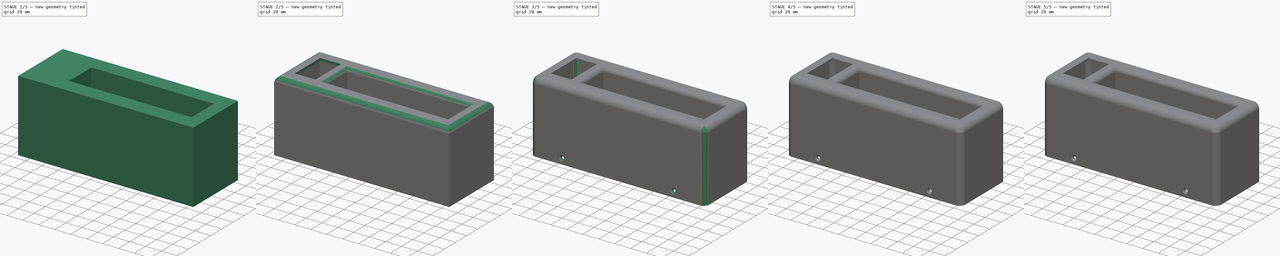
[diagram: build sequence overview — one tinted view per stage of 5, left to right]
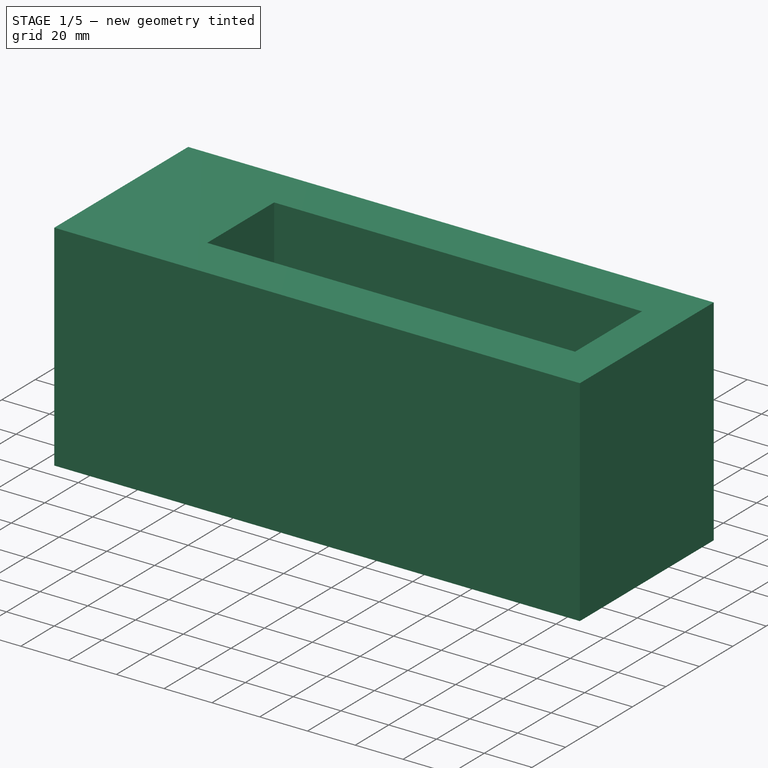
[diagram: stage 1 of 5 — iso view after this stage's code; geometry added in this stage tinted green]
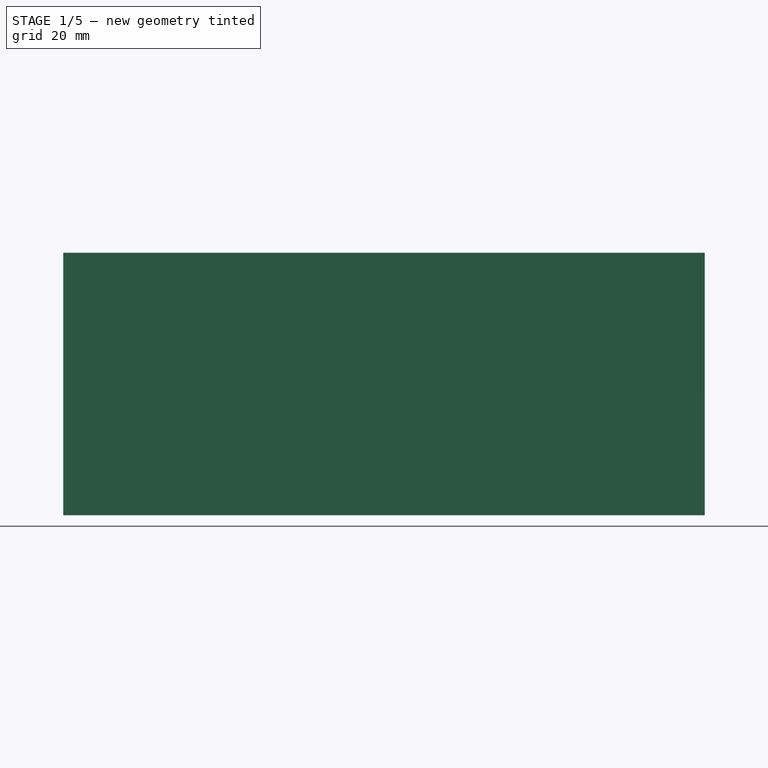
[diagram: stage 1 of 5 — front view after this stage's code; geometry added in this stage tinted green]
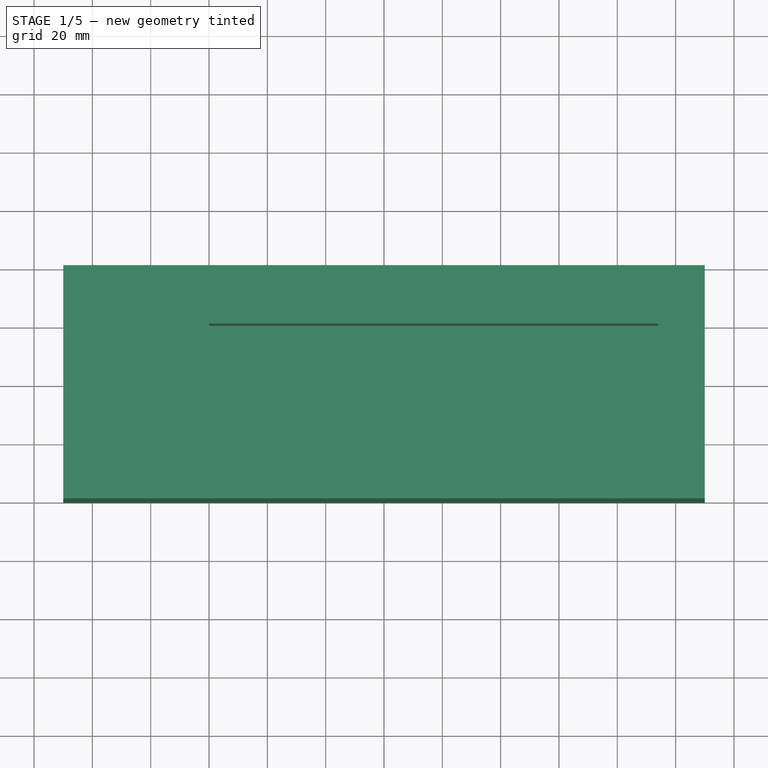
[diagram: stage 1 of 5 — top view after this stage's code; geometry added in this stage tinted green]
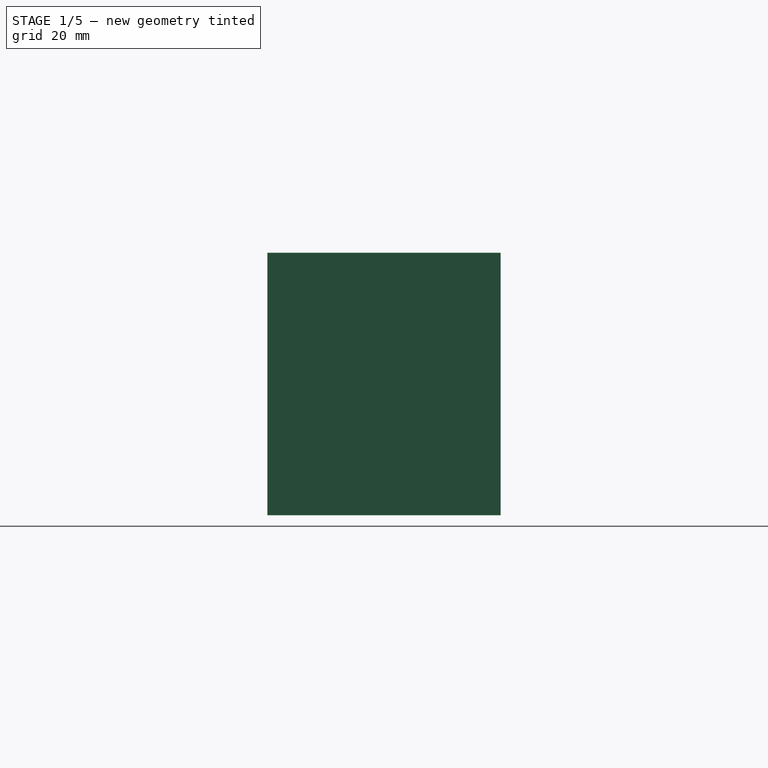
[diagram: stage 1 of 5 — right view after this stage's code; geometry added in this stage tinted green]
FCSTD DOCUMENT  (FreeCAD 1.0R39319 (Git))
Label: top
License: All rights reserved
LicenseURL: https://en.wikipedia.org/wiki/All_rights_reserved
objects: Sketcher::SketchObject×16, PartDesign::Pocket×13, PartDesign::Fillet×8, PartDesign::Pad×3, PartDesign::Chamfer×2, PartDesign::Body×1
note: 111 computed .brp shape members not serialized (recipe doc carries the construction recipe); baked Part::Feature solids carry a one-line shape summary decoded from their .brp

FEATURE [Sketcher::SketchObject] Sketch
  ArcFitTolerance = 1e-06
  AttachmentSupport = -> [XY_Plane]
  FullyConstrained = true
  MakeInternals = false
  MapMode = 5
  sketch-geometry (4):
    g0: LineSegment StartX=-110 StartY=40 StartZ=0 EndX=-110 EndY=-40 EndZ=0
    g1: LineSegment StartX=-110 StartY=-40 StartZ=0 EndX=110 EndY=-40 EndZ=0
    g2: LineSegment StartX=110 StartY=-40 StartZ=0 EndX=110 EndY=40 EndZ=0
    g3: LineSegment StartX=110 StartY=40 StartZ=0 EndX=-110 EndY=40 EndZ=0
  constraints (12):
    c: Coincident(g0,g1)
    c: Coincident(g1,g2)
    c: Coincident(g2,g3)
    c: Coincident(g3,g0)
    c: Vertical(g0)
    c: Vertical(g2)
    c: Horizontal(g1)
    c: Horizontal(g3)
    c: DistanceX(g3,g3) = 220
    c: DistanceY(g2,g2) = 80
    c: DistanceY(g-1,g0) = 40
    c: DistanceX(g0,g-1) = 110
FEATURE [PartDesign::Pad] Pad
  Direction = (0,0,1)
  Length = 90
  Length2 = 10
  Profile = -> Sketch
  ReferenceAxis = -> Sketch [N_Axis]
  Refine = true
  Suppressed = false
  Type = 0
FEATURE [Sketcher::SketchObject] Sketch001
  ArcFitTolerance = 1e-06
  AttachmentSupport = -> [Pad]
  FullyConstrained = true
  MakeInternals = false
  MapMode = 5
  Placement = pos=(0,0,90) rot=(0,0,1;0rad)
  sketch-geometry (4):
    g0: LineSegment StartX=-60 StartY=20 StartZ=0 EndX=-60 EndY=-20 EndZ=0
    g1: LineSegment StartX=-60 StartY=-20 StartZ=0 EndX=94 EndY=-20 EndZ=0
    g2: LineSegment StartX=94 StartY=-20 StartZ=0 EndX=94 EndY=20 EndZ=0
    g3: LineSegment StartX=94 StartY=20 StartZ=0 EndX=-60 EndY=20 EndZ=0
  constraints (12):
    c: Coincident(g0,g1)
    c: Coincident(g1,g2)
    c: Coincident(g2,g3)
    c: Coincident(g3,g0)
    c: Vertical(g0)
    c: Vertical(g2)
    c: Horizontal(g1)
    c: Horizontal(g3)
    c: DistanceX(g3,g3) = 154
    c: DistanceY(g2,g2) = 40
    c: DistanceX(g0,g-1) = 60
    c: DistanceY(g-1,g0) = 20
FEATURE [PartDesign::Pocket] Pocket
  BaseFeature = -> Pad
  Direction = (0,0,-1)
  Length = 50
  Length2 = 5
  Profile = -> Sketch001
  ReferenceAxis = -> Sketch001 [N_Axis]
  Refine = true
  Suppressed = false
  Type = 0
FEATURE [Sketcher::SketchObject] Sketch002  label="meter_cut_out"
  ArcFitTolerance = 1e-06
  AttachmentSupport = -> [Pocket]
  FullyConstrained = true
  MakeInternals = false
  MapMode = 5
  Placement = pos=(0,0,90) rot=(0,0,1;0rad)
  sketch-geometry (4):
    g0: LineSegment StartX=-96 StartY=23 StartZ=0 EndX=-96 EndY=-23 EndZ=0
    g1: LineSegment StartX=-96 StartY=-23 StartZ=0 EndX=-70 EndY=-23 EndZ=0
    g2: LineSegment StartX=-70 StartY=-23 StartZ=0 EndX=-70 EndY=23 EndZ=0
    g3: LineSegment StartX=-70 StartY=23 StartZ=0 EndX=-96 EndY=23 EndZ=0
  constraints (12):
    c: Coincident(g0,g1)
    c: Coincident(g1,g2)
    c: Coincident(g2,g3)
    c: Coincident(g3,g0)
    c: Vertical(g0)
    c: Vertical(g2)
    c: Horizontal(g1)
    c: Horizontal(g3)
    c: DistanceX(g3,g3) = 26
    c: DistanceY(g2,g2) = 46
    c: DistanceY(g-1,g2) = 23
    c: DistanceX(g2,g-1) = 70
FEATURE [Sketcher::SketchObject] Sketch003  label="xlr_part1"
  ArcFitTolerance = 1e-06
  AttachmentSupport = -> [Pocket]
  FullyConstrained = true
  MakeInternals = false
  MapMode = 5
  Placement = pos=(-110,0,0) rot=(0.57735,-0.57735,-0.57735;2.0944rad)
  sketch-geometry (3):
    g0: Circle CenterX=0 CenterY=17 CenterZ=0 NormalX=0 NormalY=0 NormalZ=1 AngleXU=0 Radius=11.75
    g1: Circle CenterX=9.5 CenterY=5 CenterZ=0 NormalX=0 NormalY=0 NormalZ=1 AngleXU=0 Radius=2.1
    g2: Circle CenterX=-9.5 CenterY=29 CenterZ=0 NormalX=0 NormalY=0 NormalZ=1 AngleXU=0 Radius=2.1
  constraints (9):
    c: PointOnObject(g0,g-2)
    c: Diameter(g0) = 23.5
    c: DistanceY(g-1,g0) = 17
    c: Equal(g2,g1)
    c: Diameter(g2) = 4.2
    c: DistanceY(g1,g0) = 12
    c: DistanceY(g0,g2) = 12
    c: DistanceX(g0,g1) = 9.5
    c: DistanceX(g2,g0) = 9.5
FEATURE [Sketcher::SketchObject] Sketch004
  ArcFitTolerance = 1e-06
  AttachmentSupport = -> [Pocket]
  FullyConstrained = false
  MakeInternals = false
  MapMode = 5
  Placement = pos=(-110,0,0) rot=(0.57735,-0.57735,-0.57735;2.0944rad)
  sketch-geometry (4):
    g0: LineSegment StartX=-5 StartY=29.6331 StartZ=0 EndX=-5 EndY=27.6331 EndZ=0
    g1: LineSegment StartX=-5 StartY=27.6331 StartZ=0 EndX=5 EndY=27.6331 EndZ=0
    g2: LineSegment StartX=5 StartY=27.6331 StartZ=0 EndX=5 EndY=29.6331 EndZ=0
    g3: LineSegment StartX=5 StartY=29.6331 StartZ=0 EndX=-5 EndY=29.6331 EndZ=0
  constraints (11):
    c: Coincident(g0,g1)
    c: Coincident(g1,g2)
    c: Coincident(g2,g3)
    c: Coincident(g3,g0)
    c: Vertical(g0)
    c: Vertical(g2)
    c: Horizontal(g1)
    c: Horizontal(g3)
    c: DistanceY(g2,g2) = 2
    c: DistanceX(g3,g3) = 10
    c: DistanceX(g0,g-1) = 5
FEATURE [PartDesign::Pocket] Pocket001
  BaseFeature = -> Pocket
  Direction = (1,0,0)
  Length = 5
  Length2 = 5
  Profile = -> Sketch004
  ReferenceAxis = -> Sketch004 [N_Axis]
  Refine = true
  Suppressed = false
  Type = 0
FEATURE [PartDesign::Pocket] Pocket002
  BaseFeature = -> Pocket001
  Direction = (1,0,0)
  Length = 5
  Length2 = 5
  Profile = -> Sketch003
  ReferenceAxis = -> Sketch003 [N_Axis]
  Refine = true
  Suppressed = false
  Type = 0
FEATURE [Sketcher::SketchObject] Sketch005  label="hollow_out"
  ArcFitTolerance = 1e-06
  AttachmentSupport = -> [Pocket002]
  ExternalGeometry = -> [Pocket002]
  FullyConstrained = true
  MakeInternals = false
  MapMode = 5
  Placement = pos=(0,0,0) rot=(1,0,0;3.14159rad)
  sketch-geometry (8):
    g0: LineSegment StartX=-107.5 StartY=37.5 StartZ=0 EndX=-107.5 EndY=-37.5 EndZ=0
    g1: LineSegment StartX=-107.5 StartY=-37.5 StartZ=0 EndX=107.5 EndY=-37.5 EndZ=0
    g2: LineSegment StartX=107.5 StartY=-37.5 StartZ=0 EndX=107.5 EndY=37.5 EndZ=0
    g3: LineSegment StartX=107.5 StartY=37.5 StartZ=0 EndX=-107.5 EndY=37.5 EndZ=0
    g4: LineSegment StartX=-63 StartY=23 StartZ=0 EndX=-63 EndY=-23 EndZ=0
    g5: LineSegment StartX=-63 StartY=-23 StartZ=0 EndX=97 EndY=-23 EndZ=0
    g6: LineSegment StartX=97 StartY=-23 StartZ=0 EndX=97 EndY=23 EndZ=0
    g7: LineSegment StartX=97 StartY=23 StartZ=0 EndX=-63 EndY=23 EndZ=0
  constraints (24):
    c: Coincident(g0,g1)
    c: Coincident(g1,g2)
    c: Coincident(g2,g3)
    c: Coincident(g3,g0)
    c: Vertical(g0)
    c: Vertical(g2)
    c: Horizontal(g1)
    c: Horizontal(g3)
    c: DistanceX(g-3,g0) = 2.5
    c: DistanceY(g0,g-3) = 2.5
    c: DistanceX(g1,g-4) = 2.5
    c: DistanceY(g-4,g1) = 2.5
    c: Coincident(g4,g5)
    c: Coincident(g5,g6)
    c: Coincident(g6,g7)
    c: Coincident(g7,g4)
    c: Vertical(g4)
    c: Vertical(g6)
    c: Horizontal(g5)
    c: Horizontal(g7)
    c: DistanceX(g4,g-6) = 3
    c: DistanceY(g-6,g4) = 3
    c: DistanceX(g-5,g5) = 3
    c: DistanceY(g5,g-5) = 3
FEATURE [PartDesign::Pocket] Pocket003
  BaseFeature = -> Pocket002
  Direction = (0,0,1)
  Length = 87
  Length2 = 5
  Profile = -> Sketch005
  ReferenceAxis = -> Sketch005 [N_Axis]
  Refine = true
  Suppressed = false
  Type = 0
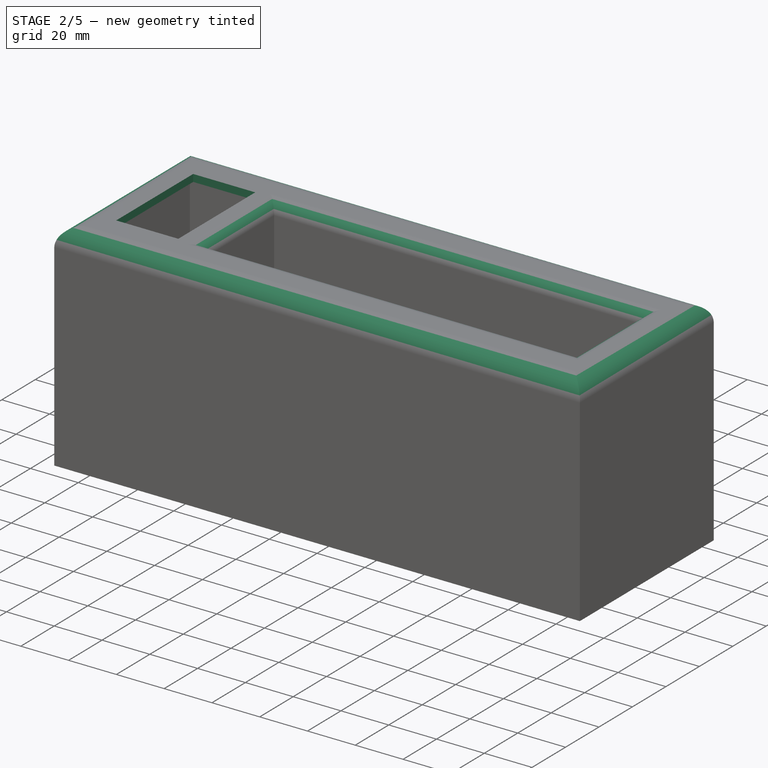
[diagram: stage 2 of 5 — iso view after this stage's code; geometry added in this stage tinted green]
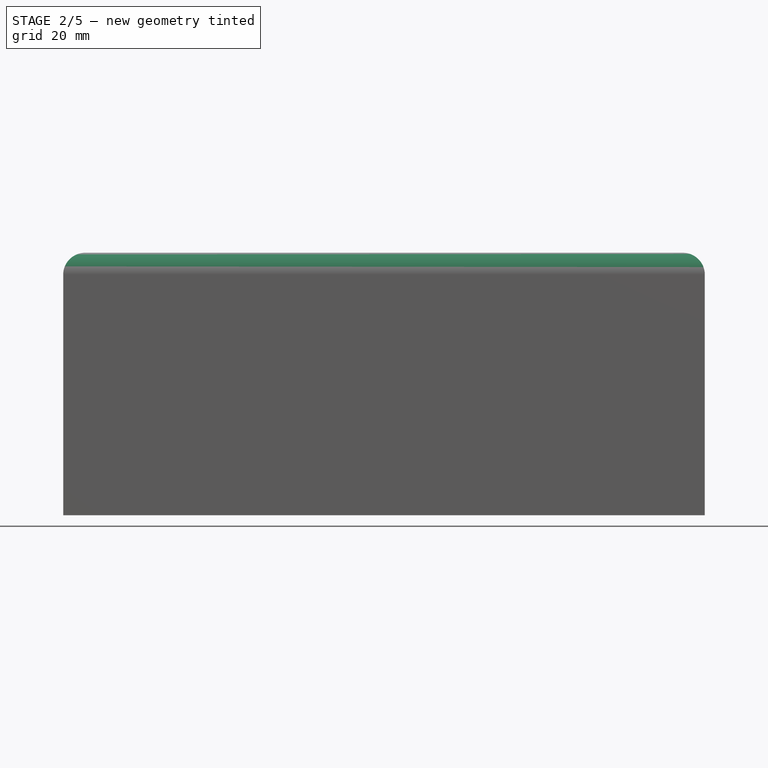
[diagram: stage 2 of 5 — front view after this stage's code; geometry added in this stage tinted green]
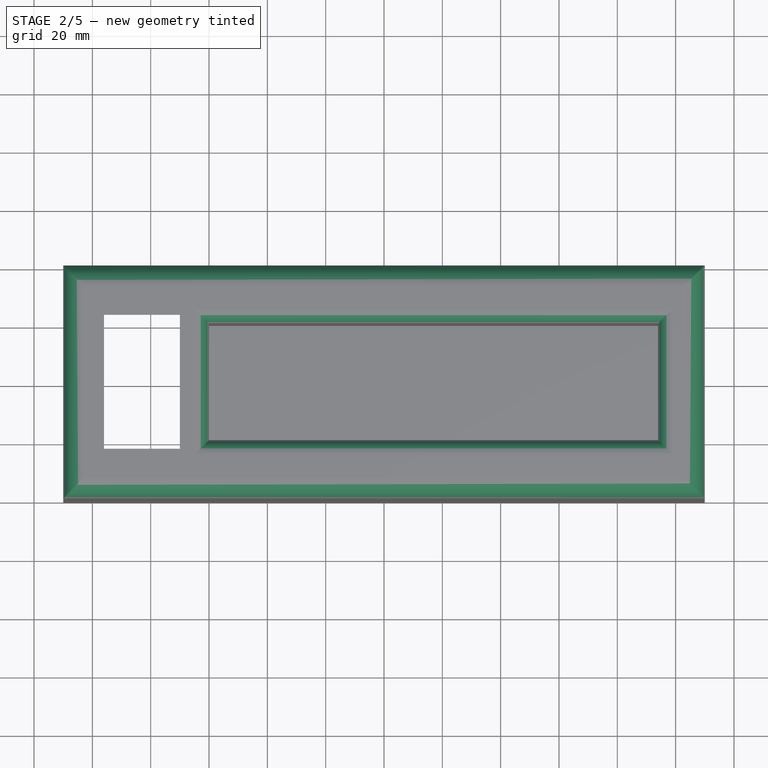
[diagram: stage 2 of 5 — top view after this stage's code; geometry added in this stage tinted green]
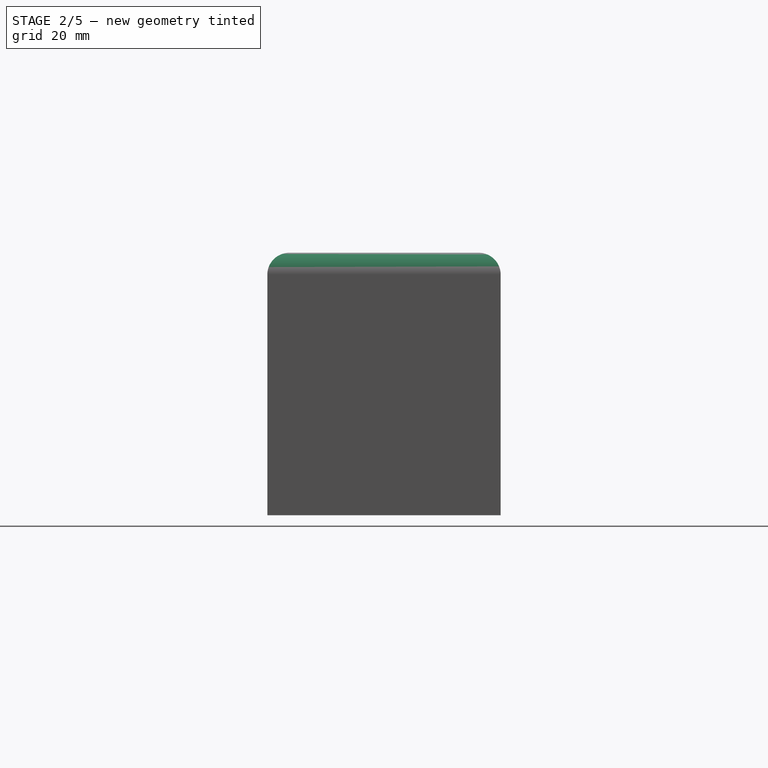
[diagram: stage 2 of 5 — right view after this stage's code; geometry added in this stage tinted green]
FEATURE [PartDesign::Pocket] Pocket004
  BaseFeature = -> Pocket003
  Direction = (0,0,-1)
  Length = 5
  Length2 = 5
  Profile = -> Sketch002
  ReferenceAxis = -> Sketch002 [N_Axis]
  Refine = true
  Suppressed = false
  Type = 0
FEATURE [PartDesign::Fillet] Fillet
  Base = -> Pocket004 [Edge68,Edge69,Edge70,Edge71]
  BaseFeature = -> Pocket004
  Radius = 5
  Refine = true
  SupportTransform = false
  Suppressed = false
  UseAllEdges = false
FEATURE [PartDesign::Fillet] Fillet001
  Base = -> Fillet [Edge7,Edge8,Edge6,Edge5]
  BaseFeature = -> Fillet
  Radius = 5
  Refine = true
  SupportTransform = false
  Suppressed = false
  UseAllEdges = false
FEATURE [PartDesign::Fillet] Fillet002
  Base = -> Fillet001 [Edge60,Edge62,Edge61,Edge59]
  BaseFeature = -> Fillet001
  Radius = 7.5
  Refine = true
  SupportTransform = false
  Suppressed = false
  UseAllEdges = false
FEATURE [PartDesign::Fillet] Fillet003
  Base = -> Fillet002 [Edge11,Edge9,Edge10,Edge12]
  BaseFeature = -> Fillet002
  Radius = 5
  Refine = true
  SupportTransform = false
  Suppressed = false
  UseAllEdges = false
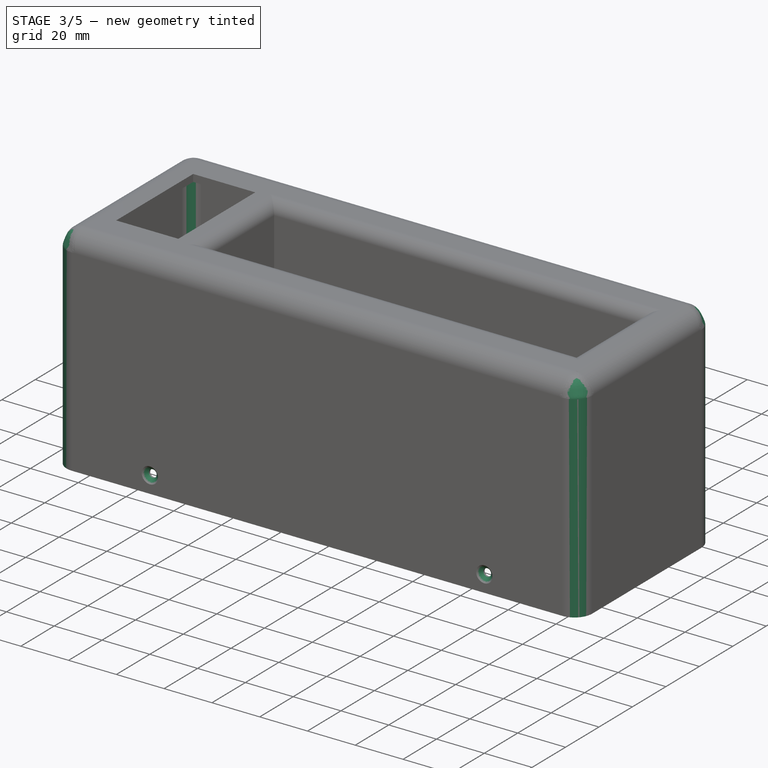
[diagram: stage 3 of 5 — iso view after this stage's code; geometry added in this stage tinted green]
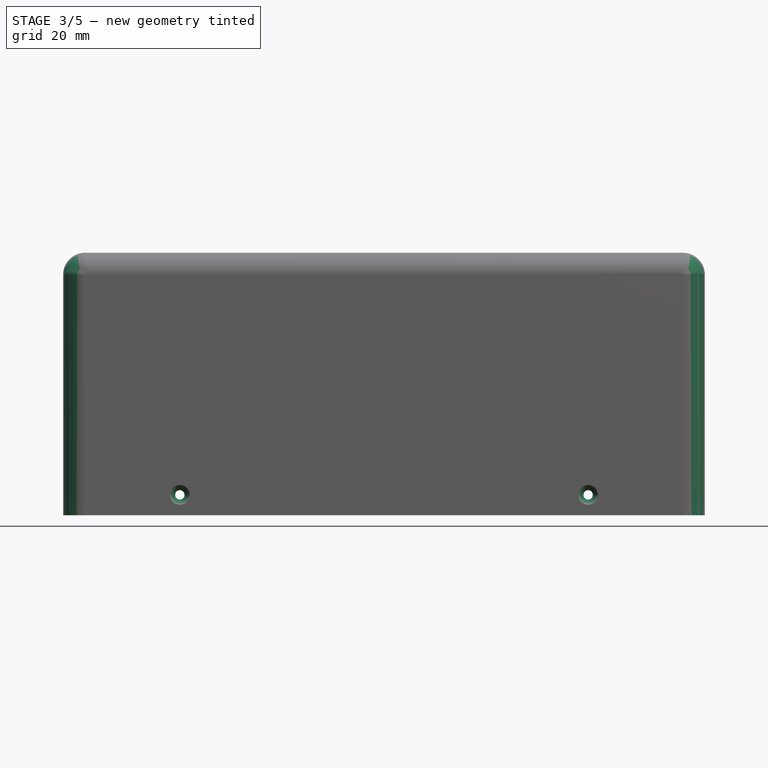
[diagram: stage 3 of 5 — front view after this stage's code; geometry added in this stage tinted green]
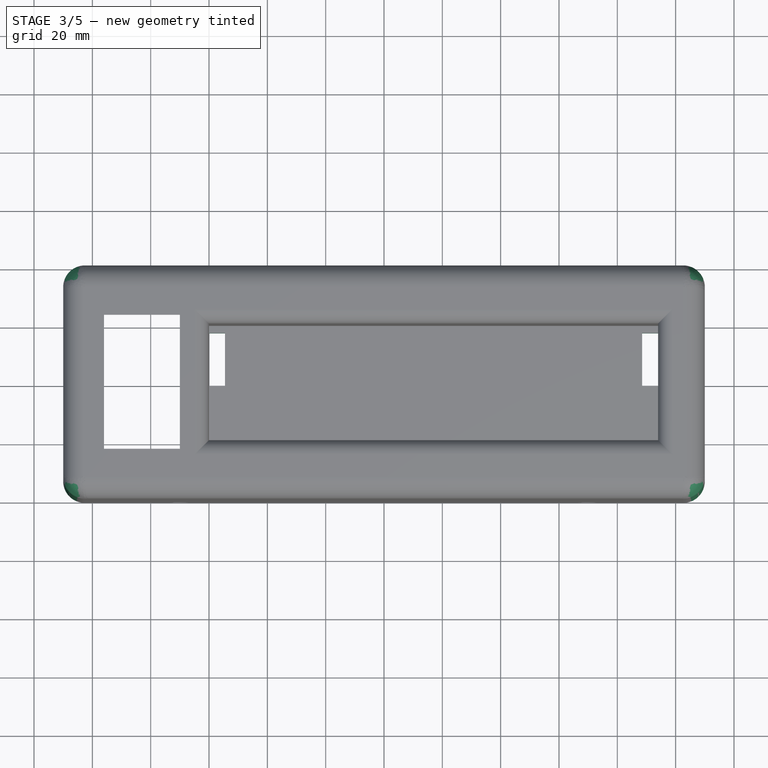
[diagram: stage 3 of 5 — top view after this stage's code; geometry added in this stage tinted green]
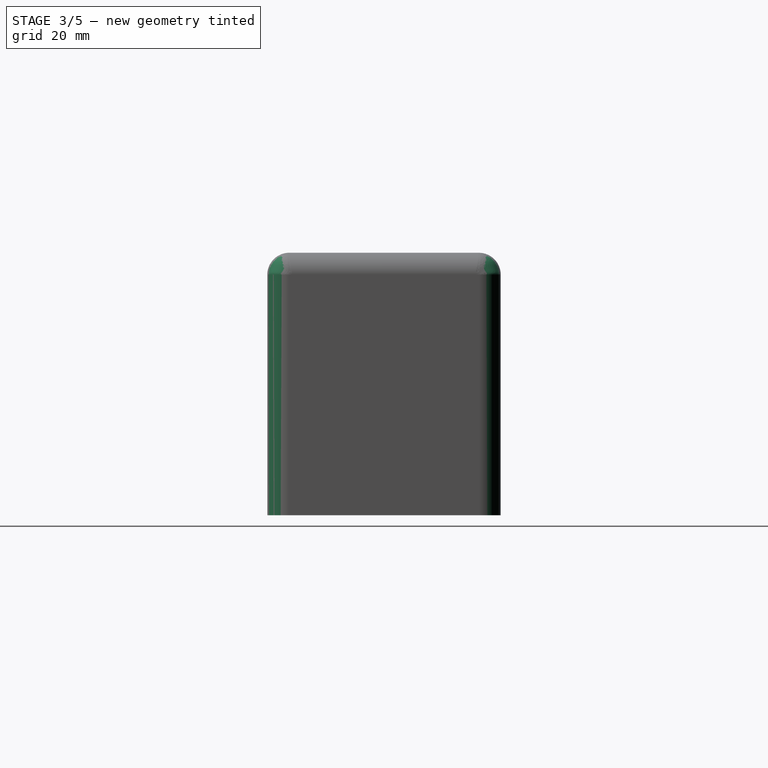
[diagram: stage 3 of 5 — right view after this stage's code; geometry added in this stage tinted green]
FEATURE [PartDesign::Fillet] Fillet004
  Base = -> Fillet003 [Edge102,Edge100,Edge103,Edge101]
  BaseFeature = -> Fillet003
  Radius = 4.9
  Refine = true
  SupportTransform = false
  Suppressed = false
  UseAllEdges = false
FEATURE [PartDesign::Fillet] Fillet005
  Base = -> Fillet004 [Edge48,Edge45,Edge35,Edge37]
  BaseFeature = -> Fillet004
  Radius = 7.4
  Refine = true
  SupportTransform = false
  Suppressed = false
  UseAllEdges = false
FEATURE [Sketcher::SketchObject] Sketch006  label="top_pin_hole_panel"
  ArcFitTolerance = 1e-06
  AttachmentSupport = -> [Fillet005]
  ExternalGeometry = -> [Fillet005]
  FullyConstrained = true
  MakeInternals = false
  MapMode = 5
  Placement = pos=(0,0,40) rot=(0,0,1;0rad)
  sketch-geometry (4):
    g0: LineSegment StartX=-45 StartY=10 StartZ=0 EndX=-45 EndY=-10 EndZ=0
    g1: LineSegment StartX=-45 StartY=-10 StartZ=0 EndX=79 EndY=-10 EndZ=0
    g2: LineSegment StartX=79 StartY=-10 StartZ=0 EndX=79 EndY=10 EndZ=0
    g3: LineSegment StartX=79 StartY=10 StartZ=0 EndX=-45 EndY=10 EndZ=0
  constraints (12):
    c: Coincident(g0,g1)
    c: Coincident(g1,g2)
    c: Coincident(g2,g3)
    c: Coincident(g3,g0)
    c: Vertical(g0)
    c: Vertical(g2)
    c: Horizontal(g1)
    c: Horizontal(g3)
    c: DistanceY(g0,g0) = 20
    c: DistanceX(g-3,g0) = 15
    c: DistanceX(g1,g-4) = 15
    c: DistanceY(g-1,g0) = 10
FEATURE [Sketcher::SketchObject] Sketch007  label="push_up_base_under_battery"
  ArcFitTolerance = 1e-06
  FullyConstrained = true
  MakeInternals = false
  MapMode = 5
  Placement = pos=(0,0,0) rot=(1,0,0;3.14159rad)
  sketch-geometry (4):
    g0: LineSegment StartX=-63 StartY=23 StartZ=0 EndX=-63 EndY=-23 EndZ=0
    g1: LineSegment StartX=-63 StartY=-23 StartZ=0 EndX=97 EndY=-23 EndZ=0
    g2: LineSegment StartX=97 StartY=-23 StartZ=0 EndX=97 EndY=23 EndZ=0
    g3: LineSegment StartX=97 StartY=23 StartZ=0 EndX=-63 EndY=23 EndZ=0
  constraints (11):
    c: Coincident(g0,g1)
    c: Coincident(g1,g2)
    c: Coincident(g2,g3)
    c: Coincident(g3,g0)
    c: Vertical(g0)
    c: Vertical(g2)
    c: Horizontal(g1)
    c: Horizontal(g3)
    c: Coincident(g0,g-3)
    c: Horizontal(g1,g-4)
    c: Vertical(g1,g-4)
FEATURE [Sketcher::SketchObject] Sketch009  label="holes_in_side"
  ArcFitTolerance = 1e-06
  FullyConstrained = true
  MakeInternals = false
  MapMode = 5
  Placement = pos=(0,40,0) rot=(0,0.707107,0.707107;3.14159rad)
  sketch-geometry (2):
    g0: Circle CenterX=-70 CenterY=7 CenterZ=0 NormalX=0 NormalY=0 NormalZ=1 AngleXU=0 Radius=1.6
    g1: Circle CenterX=70 CenterY=7 CenterZ=0 NormalX=0 NormalY=0 NormalZ=1 AngleXU=0 Radius=1.6
  constraints (6):
    c: Diameter(g1) = 3.2
    c: Equal(g1,g0)
    c: Horizontal(g0,g1)
    c: DistanceY(g-1,g0) = 7
    c: DistanceX(g0,g-1) = 70
    c: DistanceX(g1) = 70
FEATURE [Sketcher::SketchObject] Sketch010  label="locating_holes_1"
  ArcFitTolerance = 1e-06
  FullyConstrained = true
  MakeInternals = false
  MapMode = 5
  Placement = pos=(0,0,40) rot=(0,0,1;0rad)
  sketch-geometry (8):
    g0: LineSegment StartX=88.5 StartY=17.5 StartZ=0 EndX=88.5 EndY=-0.5 EndZ=0
    g1: LineSegment StartX=88.5 StartY=-0.5 StartZ=0 EndX=94 EndY=-0.5 EndZ=0
    g2: LineSegment StartX=94 StartY=-0.5 StartZ=0 EndX=94 EndY=17.5 EndZ=0
    g3: LineSegment StartX=94 StartY=17.5 StartZ=0 EndX=88.5 EndY=17.5 EndZ=0
    g4: LineSegment StartX=-60 StartY=17.5 StartZ=0 EndX=-60 EndY=-0.5 EndZ=0
    g5: LineSegment StartX=-60 StartY=-0.5 StartZ=0 EndX=-54.5 EndY=-0.5 EndZ=0
    g6: LineSegment StartX=-54.5 StartY=-0.5 StartZ=0 EndX=-54.5 EndY=17.5 EndZ=0
    g7: LineSegment StartX=-54.5 StartY=17.5 StartZ=0 EndX=-60 EndY=17.5 EndZ=0
  constraints (24):
    c: Coincident(g0,g1)
    c: Coincident(g1,g2)
    c: Coincident(g2,g3)
    c: Coincident(g3,g0)
    c: Vertical(g0)
    c: Vertical(g2)
    c: Horizontal(g1)
    c: Horizontal(g3)
    c: Coincident(g4,g5)
    c: Coincident(g5,g6)
    c: Coincident(g6,g7)
    c: Coincident(g7,g4)
    c: Vertical(g4)
    c: Vertical(g6)
    c: Horizontal(g5)
    c: Horizontal(g7)
    c: Equal(g6,g2)
    c: Equal(g3,g7)
    c: DistanceX(g7,g7) = 5.5
    c: DistanceY(g6,g6) = 18
    c: Vertical(g4,g-3)
    c: Vertical(g-3,g2)
    c: DistanceY(g4,g-3) = 2.5
    c: Horizontal(g0,g6)
FEATURE [PartDesign::Pocket] Pocket005
  BaseFeature = -> Fillet005
  Direction = (0,0,1)
  Length = 34
  Length2 = 5
  Profile = -> Sketch007
  ReferenceAxis = -> Sketch007 [N_Axis]
  Refine = true
  Suppressed = false
  Type = 0
FEATURE [PartDesign::Pocket] Pocket006
  BaseFeature = -> Pocket005
  Direction = (0,-1,2e-16)
  Length = 80
  Length2 = 5
  Profile = -> Sketch009
  ReferenceAxis = -> Sketch009 [N_Axis]
  Refine = true
  Suppressed = false
  Type = 0
FEATURE [PartDesign::Chamfer] Chamfer
  Angle = 45
  Base = -> Pocket006 [Edge38,Edge37,Edge33,Edge34]
  BaseFeature = -> Pocket006
  ChamferType = 0
  FlipDirection = false
  Refine = true
  Size = 1.8
  Size2 = 1
  SupportTransform = false
  Suppressed = false
  UseAllEdges = false
FEATURE [PartDesign::Pocket] Pocket007
  BaseFeature = -> Chamfer
  Direction = (0,0,-1)
  Length = 10
  Length2 = 5
  Profile = -> Sketch010
  ReferenceAxis = -> Sketch010 [N_Axis]
  Refine = true
  Suppressed = false
  Type = 0
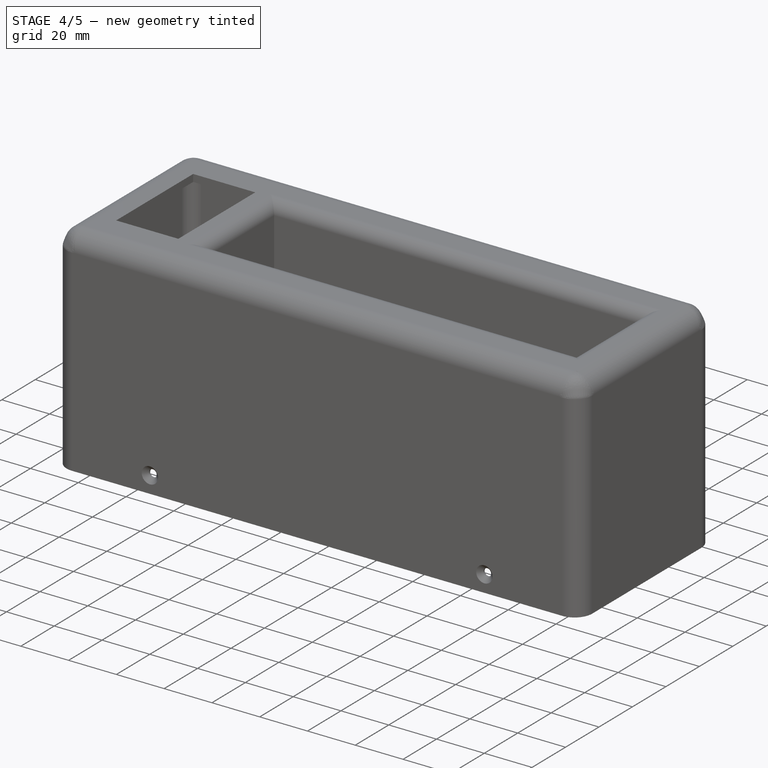
[diagram: stage 4 of 5 — iso view after this stage's code; geometry added in this stage tinted green]
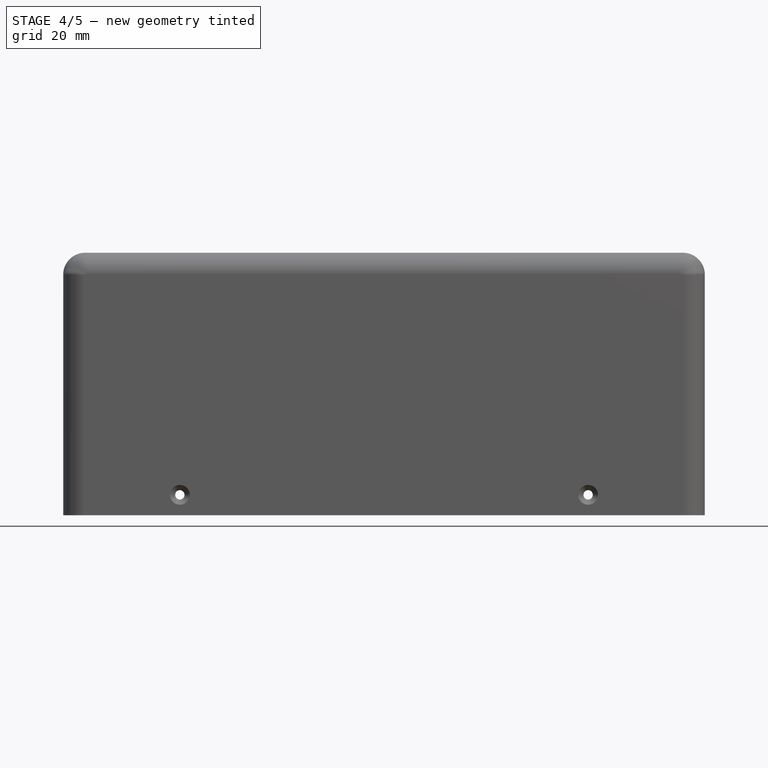
[diagram: stage 4 of 5 — front view after this stage's code; geometry added in this stage tinted green]
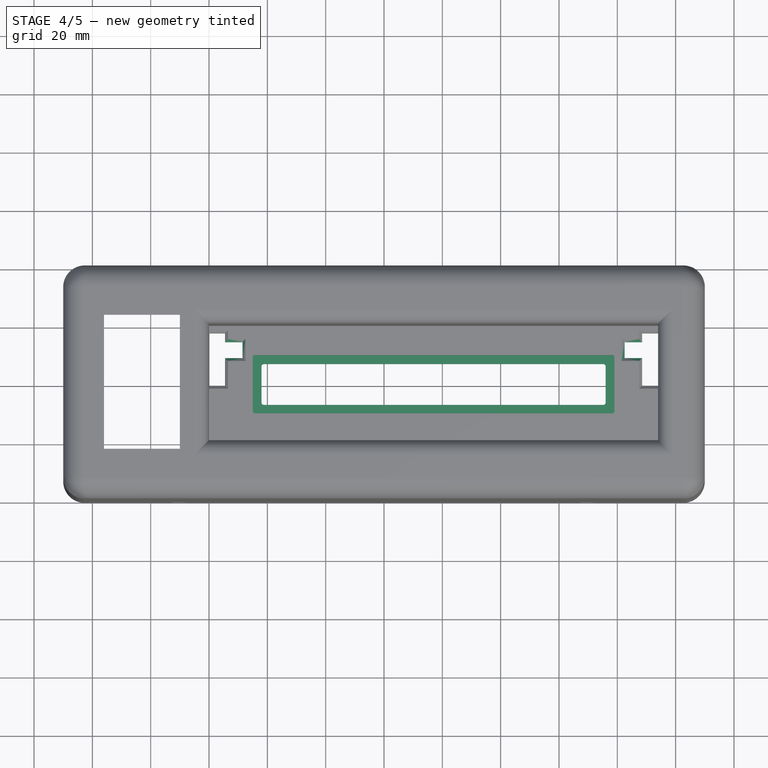
[diagram: stage 4 of 5 — top view after this stage's code; geometry added in this stage tinted green]
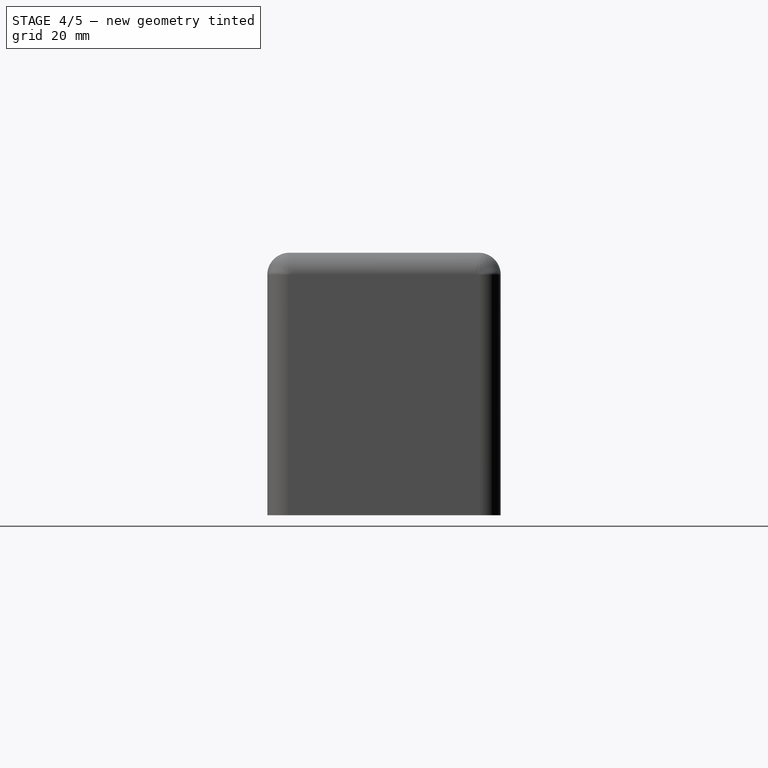
[diagram: stage 4 of 5 — right view after this stage's code; geometry added in this stage tinted green]
FEATURE [Sketcher::SketchObject] Sketch011  label="locating_holes_2"
  ArcFitTolerance = 1e-06
  AttachmentSupport = -> [Pocket007]
  ExternalGeometry = -> [Pocket007]
  FullyConstrained = true
  MakeInternals = false
  MapMode = 5
  Placement = pos=(0,0,40) rot=(0,0,1;0rad)
  sketch-geometry (8):
    g0: LineSegment StartX=-54.5 StartY=14.5 StartZ=0 EndX=-54.5 EndY=9 EndZ=0
    g1: LineSegment StartX=-54.5 StartY=9 StartZ=0 EndX=-48.5 EndY=9 EndZ=0
    g2: LineSegment StartX=-48.5 StartY=9 StartZ=0 EndX=-48.5 EndY=14.5 EndZ=0
    g3: LineSegment StartX=-48.5 StartY=14.5 StartZ=0 EndX=-54.5 EndY=14.5 EndZ=0
    g4: LineSegment StartX=88.5 StartY=14.5 StartZ=0 EndX=82.5 EndY=14.5 EndZ=0
    g5: LineSegment StartX=82.5 StartY=14.5 StartZ=0 EndX=82.5 EndY=9 EndZ=0
    g6: LineSegment StartX=82.5 StartY=9 StartZ=0 EndX=88.5 EndY=9 EndZ=0
    g7: LineSegment StartX=88.5 StartY=9 StartZ=0 EndX=88.5 EndY=14.5 EndZ=0
  constraints (24):
    c: Coincident(g0,g1)
    c: Coincident(g1,g2)
    c: Coincident(g2,g3)
    c: Coincident(g3,g0)
    c: Vertical(g0)
    c: Vertical(g2)
    c: Horizontal(g1)
    c: Horizontal(g3)
    c: Coincident(g4,g5)
    c: Coincident(g5,g6)
    c: Coincident(g6,g7)
    c: Coincident(g7,g4)
    c: Horizontal(g4)
    c: Horizontal(g6)
    c: Vertical(g5)
    c: Vertical(g7)
    c: Equal(g3,g4)
    c: DistanceY(g2,g2) = 5.5
    c: Equal(g2,g7)
    c: Vertical(g0,g-4)
    c: Vertical(g4,g-5)
    c: DistanceX(g3,g3) = 6
    c: Horizontal(g4,g2)
    c: DistanceY(g0,g-4) = 3
FEATURE [PartDesign::Pocket] Pocket008
  BaseFeature = -> Pocket007
  Direction = (0,0,-1)
  Length = 6
  Length2 = 5
  Profile = -> Sketch011
  ReferenceAxis = -> Sketch011 [N_Axis]
  Refine = true
  Suppressed = false
  Type = 0
FEATURE [PartDesign::Pocket] Pocket009
  BaseFeature = -> Pocket008
  Direction = (0,0,-1)
  Length = 3
  Length2 = 5
  Profile = -> Sketch006
  ReferenceAxis = -> Sketch006 [N_Axis]
  Refine = true
  Suppressed = false
  Type = 0
FEATURE [Sketcher::SketchObject] Sketch012
  ArcFitTolerance = 1e-06
  AttachmentSupport = -> [Pocket009]
  ExternalGeometry = -> [Pocket009]
  FullyConstrained = true
  MakeInternals = false
  MapMode = 5
  Placement = pos=(0,0,37) rot=(0,0,1;0rad)
  sketch-geometry (4):
    g0: LineSegment StartX=-42 StartY=7 StartZ=0 EndX=-42 EndY=-7 EndZ=0
    g1: LineSegment StartX=-42 StartY=-7 StartZ=0 EndX=76 EndY=-7 EndZ=0
    g2: LineSegment StartX=76 StartY=-7 StartZ=0 EndX=76 EndY=7 EndZ=0
    g3: LineSegment StartX=76 StartY=7 StartZ=0 EndX=-42 EndY=7 EndZ=0
  constraints (12):
    c: Coincident(g0,g1)
    c: Coincident(g1,g2)
    c: Coincident(g2,g3)
    c: Coincident(g3,g0)
    c: Vertical(g0)
    c: Vertical(g2)
    c: Horizontal(g1)
    c: Horizontal(g3)
    c: DistanceY(g0,g-3) = 3
    c: DistanceX(g-3,g0) = 3
    c: DistanceY(g-4,g1) = 3
    c: DistanceX(g1,g-4) = 3
FEATURE [PartDesign::Pocket] Pocket010
  BaseFeature = -> Pocket009
  Direction = (0,0,-1)
  Length = 3
  Length2 = 5
  Profile = -> Sketch012
  ReferenceAxis = -> Sketch012 [N_Axis]
  Refine = true
  Suppressed = false
  Type = 0
FEATURE [PartDesign::Fillet] Fillet006
  Base = -> Pocket010 [Edge224,Edge236,Edge237,Edge225,Edge239,Edge227,Edge229,Edge241]
  BaseFeature = -> Pocket010
  Radius = 0.8
  Refine = true
  SupportTransform = false
  Suppressed = false
  UseAllEdges = false
FEATURE [PartDesign::Chamfer] Chamfer001
  Angle = 45
  Base = -> Fillet006 [Edge10,Edge12,Edge14,Edge16,Edge18,Edge20,Edge22,Edge15,Edge17,Edge19,Edge21,Edge23,Edge25,Edge27]
  BaseFeature = -> Fillet006
  ChamferType = 0
  FlipDirection = false
  Refine = true
  Size = 1
  Size2 = 1
  SupportTransform = false
  Suppressed = false
  UseAllEdges = false
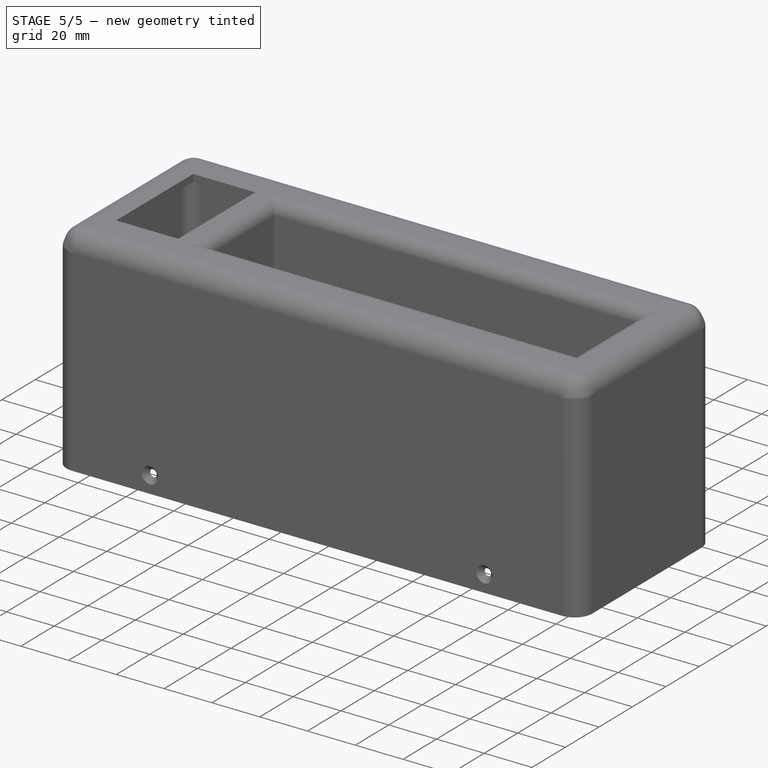
[diagram: stage 5 of 5 — iso view after this stage's code; geometry added in this stage tinted green]
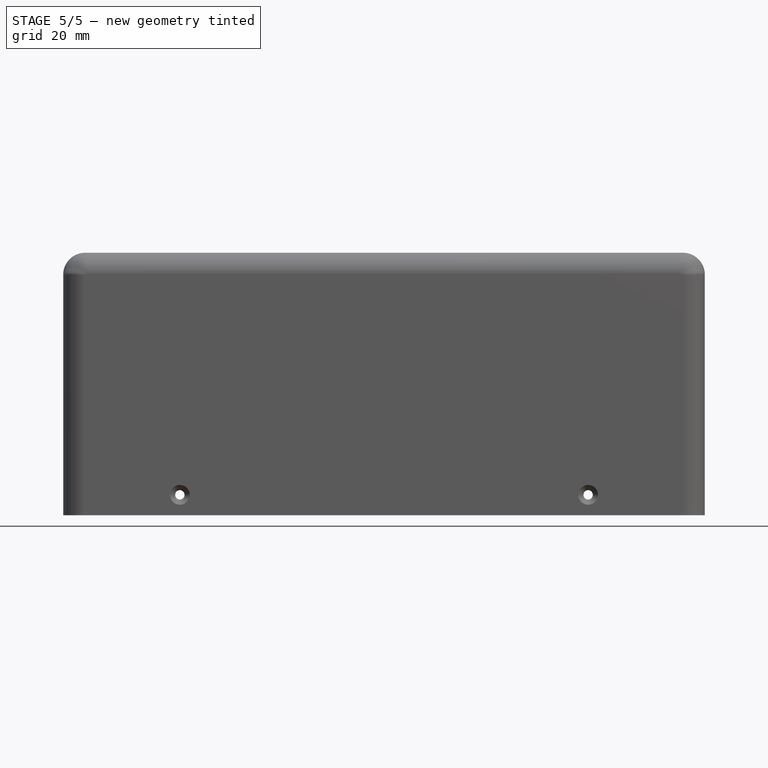
[diagram: stage 5 of 5 — front view after this stage's code; geometry added in this stage tinted green]
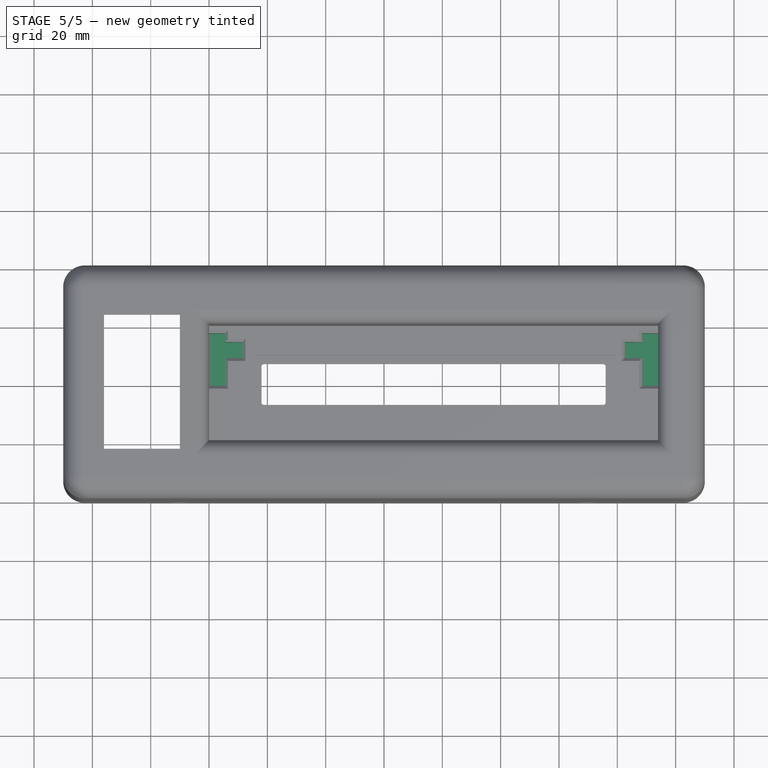
[diagram: stage 5 of 5 — top view after this stage's code; geometry added in this stage tinted green]
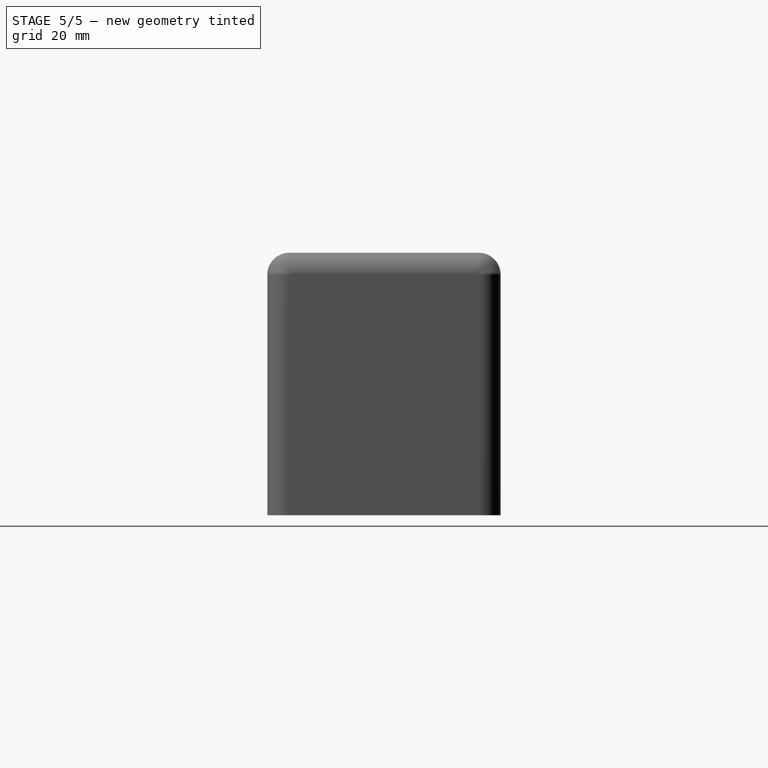
[diagram: stage 5 of 5 — right view after this stage's code; geometry added in this stage tinted green]
FEATURE [Sketcher::SketchObject] Sketch013
  ArcFitTolerance = 1e-06
  AttachmentSupport = -> [Chamfer001]
  FullyConstrained = true
  MakeInternals = false
  MapMode = 5
  Placement = pos=(-110,0,0) rot=(0.57735,-0.57735,-0.57735;2.0944rad)
  sketch-geometry (1):
    g0: Circle CenterX=0 CenterY=50 CenterZ=0 NormalX=0 NormalY=0 NormalZ=1 AngleXU=0 Radius=6.5
  constraints (3):
    c: PointOnObject(g0,g-2)
    c: Diameter(g0) = 13
    c: DistanceY(g-1,g0) = 50
FEATURE [PartDesign::Pocket] Pocket011
  BaseFeature = -> Chamfer001
  Direction = (1,0,0)
  Length = 5
  Length2 = 5
  Profile = -> Sketch013
  ReferenceAxis = -> Sketch013 [N_Axis]
  Refine = true
  Suppressed = false
  Type = 0
FEATURE [Sketcher::SketchObject] Sketch014
  ArcFitTolerance = 1e-06
  AttachmentSupport = -> [Pocket011]
  ExternalGeometry = -> [Pocket011]
  FullyConstrained = true
  MakeInternals = false
  MapMode = 5
  Placement = pos=(-110,0,0) rot=(0.57735,-0.57735,-0.57735;2.0944rad)
  sketch-geometry (4):
    g0: LineSegment StartX=5.9 StartY=55 StartZ=0 EndX=5.9 EndY=45 EndZ=0
    g1: LineSegment StartX=5.9 StartY=45 StartZ=0 EndX=6.5 EndY=45 EndZ=0
    g2: LineSegment StartX=6.5 StartY=45 StartZ=0 EndX=6.5 EndY=55 EndZ=0
    g3: LineSegment StartX=6.5 StartY=55 StartZ=0 EndX=5.9 EndY=55 EndZ=0
  constraints (12):
    c: Coincident(g0,g1)
    c: Coincident(g1,g2)
    c: Coincident(g2,g3)
    c: Coincident(g3,g0)
    c: Vertical(g0)
    c: Vertical(g2)
    c: Horizontal(g1)
    c: Horizontal(g3)
    c: Tangent(g2,g-4)
    c: DistanceX(g-4,g0) = 5.9
    c: DistanceY(g2,g2) = 10
    c: DistanceY(g-4,g0) = 5
FEATURE [PartDesign::Pad] Pad001
  BaseFeature = -> Pocket011
  Direction = (-1,0,0)
  Length = 2.5
  Length2 = 10
  Profile = -> Sketch014
  ReferenceAxis = -> Sketch014 [N_Axis]
  Refine = true
  Reversed = true
  Suppressed = false
  Type = 0
FEATURE [Sketcher::SketchObject] Sketch015
  ArcFitTolerance = 1e-06
  AttachmentSupport = -> [Pad001]
  ExternalGeometry = -> [Pad001]
  FullyConstrained = true
  MakeInternals = false
  MapMode = 5
  Placement = pos=(0,0,34) rot=(1,0,0;3.14159rad)
  sketch-geometry (8):
    g0: LineSegment StartX=-63 StartY=-23 StartZ=0 EndX=-46 EndY=-23 EndZ=0
    g1: LineSegment StartX=-46 StartY=-23 StartZ=0 EndX=-46 EndY=4 EndZ=0
    g2: LineSegment StartX=-46 StartY=4 StartZ=0 EndX=-63 EndY=4 EndZ=0
    g3: LineSegment StartX=-63 StartY=4 StartZ=0 EndX=-63 EndY=-23 EndZ=0
    g4: LineSegment StartX=97 StartY=-23 StartZ=0 EndX=97 EndY=4 EndZ=0
    g5: LineSegment StartX=97 StartY=4 StartZ=0 EndX=80 EndY=4 EndZ=0
    g6: LineSegment StartX=80 StartY=4 StartZ=0 EndX=80 EndY=-23 EndZ=0
    g7: LineSegment StartX=80 StartY=-23 StartZ=0 EndX=97 EndY=-23 EndZ=0
  constraints (22):
    c: Coincident(g0,g1)
    c: Coincident(g1,g2)
    c: Coincident(g2,g3)
    c: Coincident(g3,g0)
    c: Horizontal(g0)
    c: Horizontal(g2)
    c: Vertical(g1)
    c: Vertical(g3)
    c: Coincident(g4,g5)
    c: Coincident(g5,g6)
    c: Coincident(g6,g7)
    c: Coincident(g7,g4)
    c: Vertical(g4)
    c: Vertical(g6)
    c: Horizontal(g5)
    c: Horizontal(g7)
    c: Coincident(g4,g-3)
    c: Coincident(g-3,g0)
    c: DistanceX(g0,g0) = 17
    c: DistanceY(g3,g3) = 27
    c: DistanceX(g7,g7) = 17
    c: DistanceY(g4,g4) = 27
FEATURE [PartDesign::Pad] Pad002
  BaseFeature = -> Pad001
  Direction = (0,0,-1)
  Length = 10
  Length2 = 10
  Profile = -> Sketch015
  ReferenceAxis = -> Sketch015 [N_Axis]
  Refine = true
  Suppressed = false
  Type = 0
FEATURE [PartDesign::Fillet] Fillet007
  Base = -> Pad002 [Edge176,Edge177,Edge179,Edge180,Edge231,Edge295,Edge294,Edge233,Edge228,Edge226,Edge292,Edge293]
  BaseFeature = -> Pad002
  Radius = 2
  Refine = true
  SupportTransform = false
  Suppressed = false
  UseAllEdges = false
FEATURE [Sketcher::SketchObject] Sketch016
  ArcFitTolerance = 1e-06
  AttachmentSupport = -> [Fillet007]
  ExternalGeometry = -> [Fillet007]
  FullyConstrained = true
  MakeInternals = false
  MapMode = 5
  Placement = pos=(0,0,34) rot=(0,0,1;0rad)
  sketch-geometry (16):
    g0: LineSegment StartX=-60 StartY=17.5 StartZ=0 EndX=-54.5 EndY=17.5 EndZ=0
    g1: LineSegment StartX=-54.5 StartY=17.5 StartZ=0 EndX=-54.5 EndY=14.5 EndZ=0
    g2: LineSegment StartX=-54.5 StartY=14.5 StartZ=0 EndX=-48.5 EndY=14.5 EndZ=0
    g3: LineSegment StartX=-48.5 StartY=14.5 StartZ=0 EndX=-48.5 EndY=9 EndZ=0
    g4: LineSegment StartX=-48.5 StartY=9 StartZ=0 EndX=-54.5 EndY=9 EndZ=0
    g5: LineSegment StartX=-54.5 StartY=9 StartZ=0 EndX=-54.5 EndY=-0.5 EndZ=0
    g6: LineSegment StartX=-54.5 StartY=-0.5 StartZ=0 EndX=-60 EndY=-0.5 EndZ=0
    g7: LineSegment StartX=-60 StartY=-0.5 StartZ=0 EndX=-60 EndY=17.5 EndZ=0
    g8: LineSegment StartX=94 StartY=-0.5 StartZ=0 EndX=88.5 EndY=-0.5 EndZ=0
    g9: LineSegment StartX=88.5 StartY=-0.5 StartZ=0 EndX=88.5 EndY=9 EndZ=0
    g10: LineSegment StartX=88.5 StartY=9 StartZ=0 EndX=82.5 EndY=9 EndZ=0
    g11: LineSegment StartX=82.5 StartY=9 StartZ=0 EndX=82.5 EndY=14.5 EndZ=0
    g12: LineSegment StartX=82.5 StartY=14.5 StartZ=0 EndX=88.5 EndY=14.5 EndZ=0
    g13: LineSegment StartX=88.5 StartY=14.5 StartZ=0 EndX=88.5 EndY=17.5 EndZ=0
    g14: LineSegment StartX=88.5 StartY=17.5 StartZ=0 EndX=94 EndY=17.5 EndZ=0
    g15: LineSegment StartX=94 StartY=17.5 StartZ=0 EndX=94 EndY=-0.5 EndZ=0
  constraints (32):
    c: Coincident(g-7,g0)
    c: Coincident(g0,g-8)
    c: Coincident(g0,g1)
    c: Coincident(g1,g-9)
    c: Coincident(g1,g2)
    c: Coincident(g2,g-9)
    c: Coincident(g2,g3)
    c: Coincident(g3,g-3)
    c: Coincident(g3,g4)
    c: Coincident(g4,g-4)
    c: Coincident(g4,g5)
    c: Coincident(g5,g-5)
    c: Coincident(g5,g6)
    c: Coincident(g6,g-5)
    c: Coincident(g6,g7)
    c: Coincident(g7,g0)
    c: Coincident(g-13,g8)
    c: Coincident(g8,g-13)
    c: Coincident(g8,g9)
    c: Coincident(g9,g-12)
    c: Coincident(g9,g10)
    c: Coincident(g10,g-12)
    c: Coincident(g10,g11)
    c: Coincident(g11,g-10)
    c: Coincident(g11,g12)
    c: Coincident(g12,g-10)
    c: Coincident(g12,g13)
    c: Coincident(g13,g-11)
    c: Coincident(g13,g14)
    c: Coincident(g14,g-11)
    c: Coincident(g14,g15)
    c: Coincident(g15,g8)
FEATURE [PartDesign::Pocket] Pocket012
  BaseFeature = -> Fillet007
  Direction = (0,0,-1)
  Length = 6
  Length2 = 5
  Profile = -> Sketch016
  ReferenceAxis = -> Sketch016 [N_Axis]
  Refine = true
  Suppressed = false
  Type = 0
FEATURE [PartDesign::Body] Body
  AllowCompound = false
  Group = -> [Sketch,Pad,Sketch001,Pocket,Sketch002,Sketch003,Sketch004,Pocket001,Pocket002,Sketch005,Pocket003,Pocket004,Fillet,Fillet001,Fillet002,Fillet003,Fillet004,Fillet005,Sketch006,Sketch007,Sketch009,Sketch010,Pocket005,Pocket006,Chamfer,Pocket007,Sketch011,Pocket008,Pocket009,Sketch012,Pocket010,Fillet006,Chamfer001,Sketch013,Pocket011,Sketch014,Pad001,Sketch015,Pad002,Fillet007,Sketch016,Pocket012]
  Origin = -> Origin
  Tip = -> Pocket012
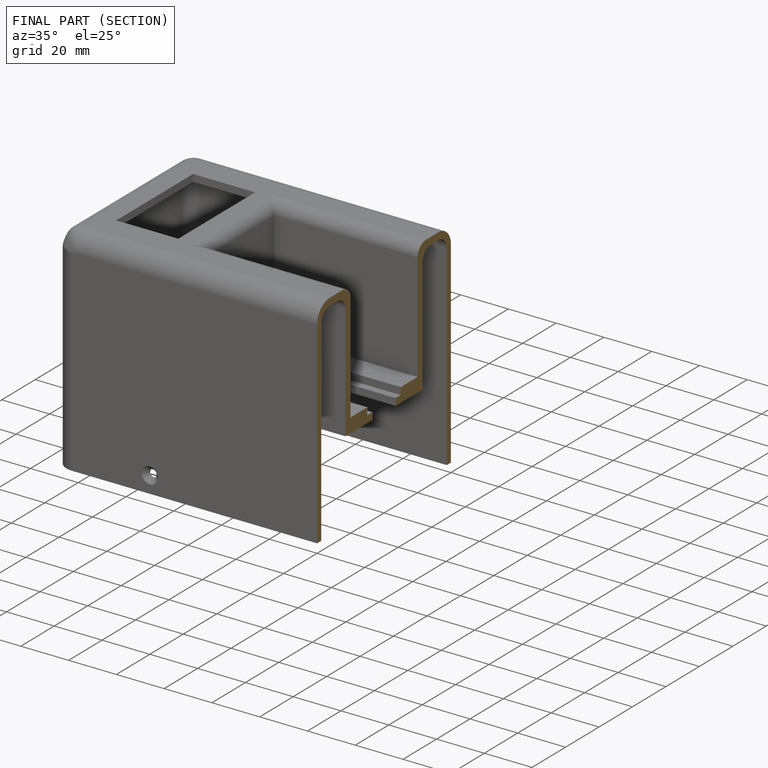
[diagram: finished part — half-section view (interior)]
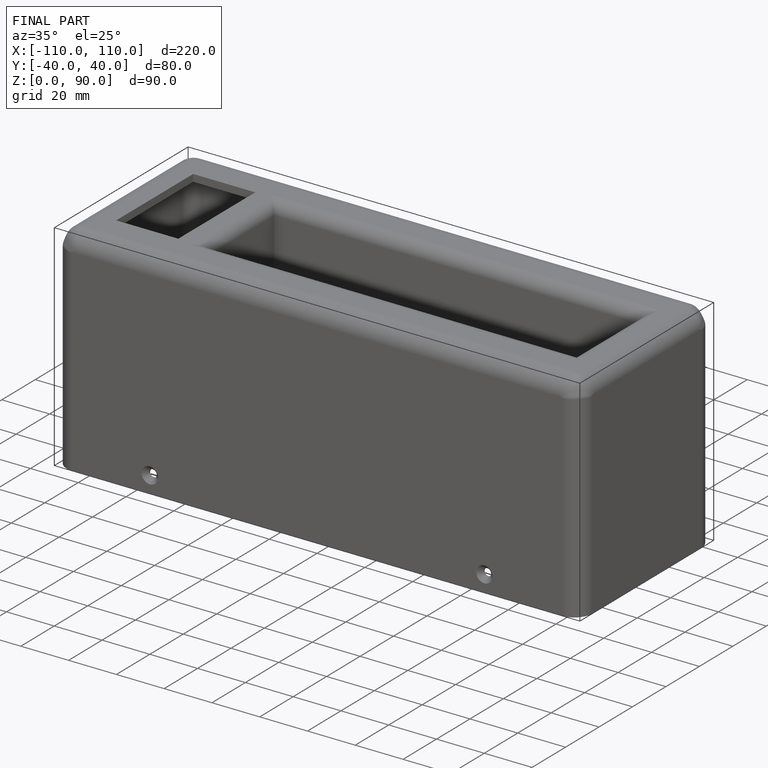
[diagram: finished part — iso view with bounding-box wireframe]
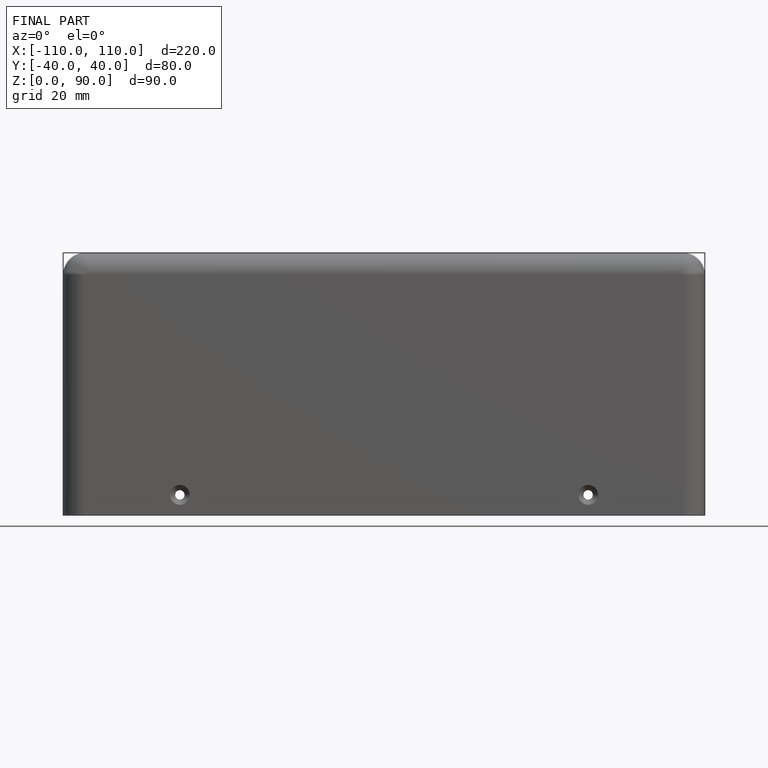
[diagram: finished part — front view with bounding-box wireframe]
